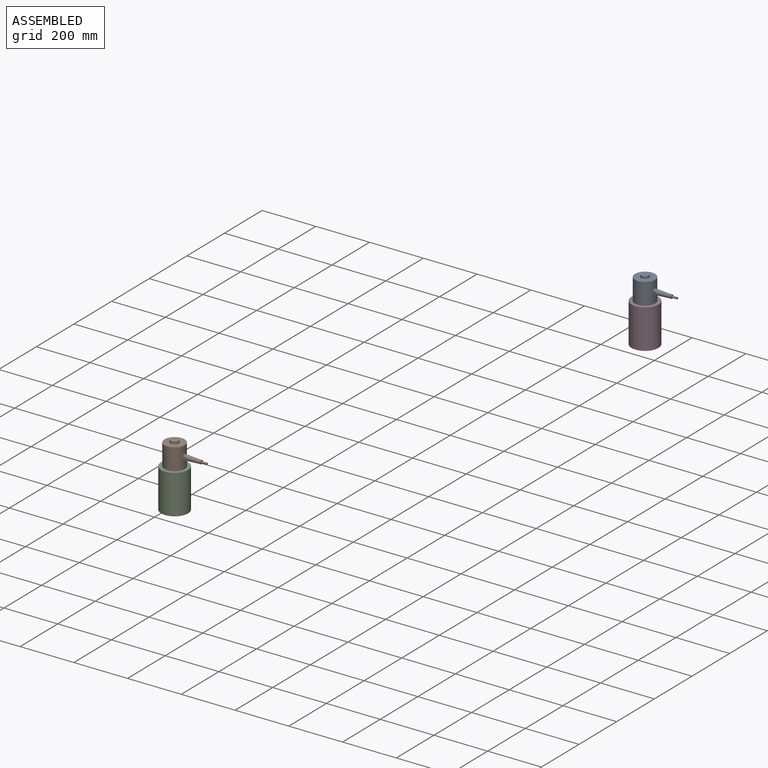
[diagram: assembled view]
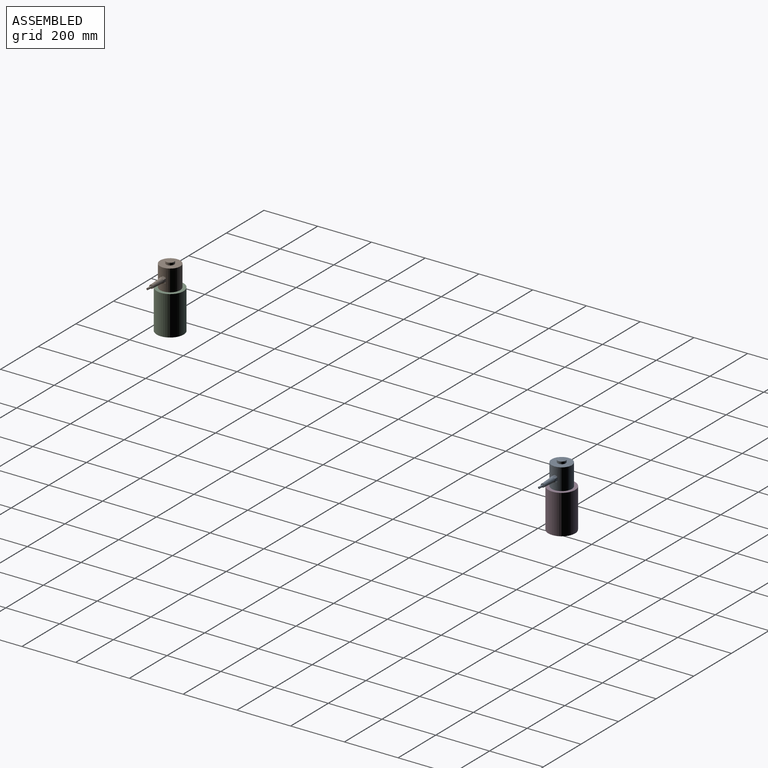
[diagram: assembled view, second angle]
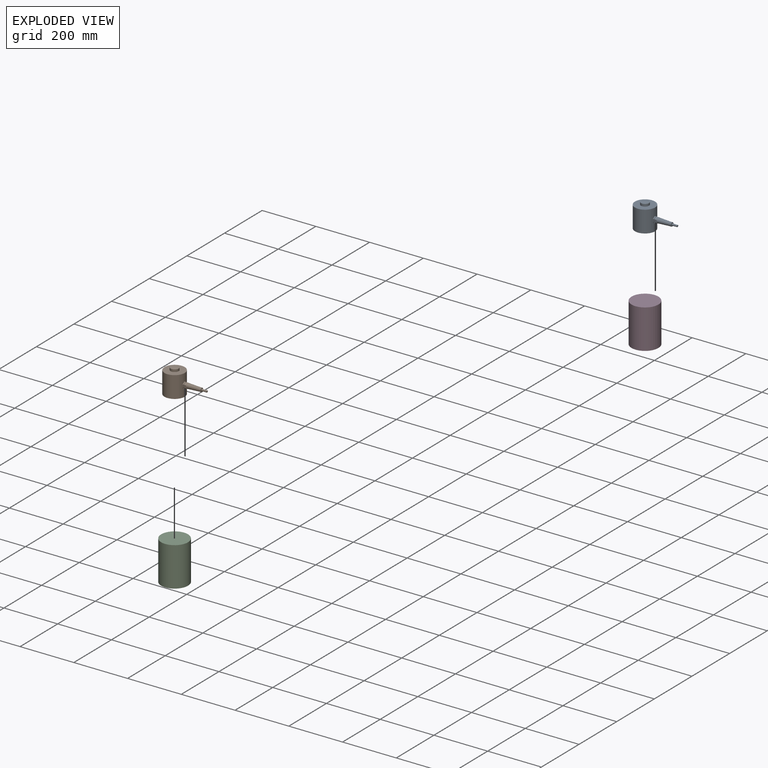
[diagram: exploded view]
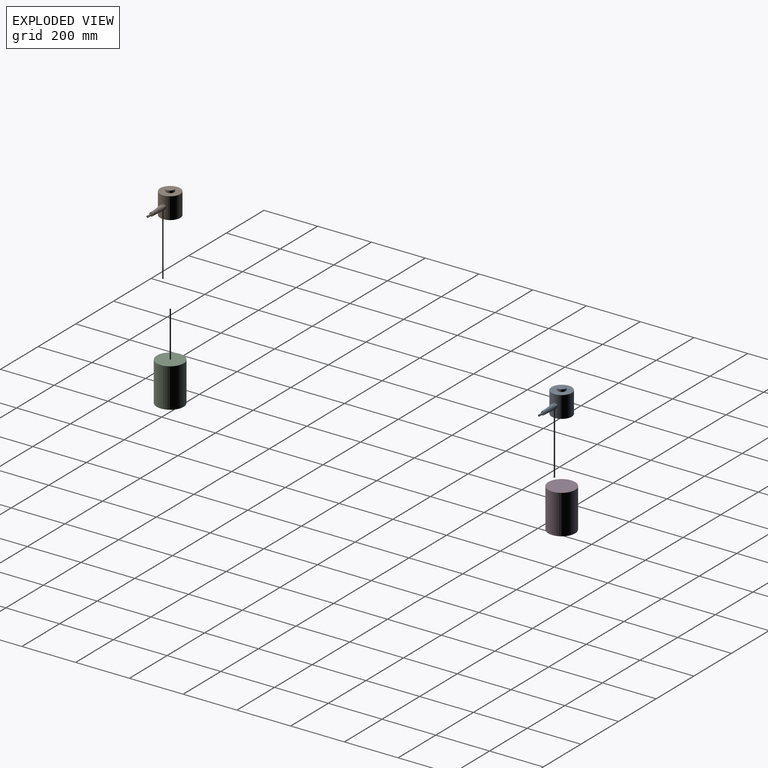
[diagram: exploded view, second angle]
ASSEMBLY  parts=4 mates=2
PART A: 52 faces, bbox 158.8x75x90 mm
  f0: plane 8.92x8.71mm, normal (0,0.5,0.87), area 84.7mm2, adj f4,f8,f11,f24,f30,f35
  f1: sphere r=100mm, area 710.9mm2, adj f51
  f2: plane 10.06x8.92mm, normal (0,1,0), area 84.7mm2, adj f3,f4,f11,f30,f31,f35
  f3: plane 0.7x0.41mm, normal (1,0,0), area 0mm2, adj f2,f4,f31,f36
  f4: cone r=10.74mm half-angle=40.7deg, axis (-1,0,0), area 67.1mm2, adj f0,f2,f3,f5,f6,f8,f10,f15
  f5: plane 0.7x0.41mm, normal (1,0,0), area 0mm2, adj f4,f6,f21,f22
  f6: plane 10.06x8.92mm, normal (0,-1,0), area 84.6mm2, adj f4,f5,f11,f22,f32,f42
  f7: plane 8.71x5.03mm, normal (0,0.5,-0.87), area 40.2mm2, adj f20,f25,f28,f33
  f8: plane 0.81x0.02mm, normal (1,0,0), area 0mm2, adj f0,f4,f15,f24
  f9: cylinder r=8.5mm len=17mm, axis (1,0,0), area 53.4mm2, adj f11,f33
  f10: cone r=9.24mm half-angle=3deg, axis (-1,0,0), area 2158.3mm2, adj f4,f40
  f11: plane 21.5x19mm, normal (-1,0,0), area 85.1mm2, adj f0,f2,f6,f9,f15,f21,f22,f23
  f12: plane 8.71x5.03mm, normal (0,-0.5,0.87), area 40.2mm2, adj f13,f14,f26,f33
  f13: cylinder r=10.75mm len=4mm, axis (-1,0,0), area 3.1mm2, adj f12,f16,f26,f33
  f14: cylinder r=10.75mm len=4.02mm, axis (-1,0,0), area 3.1mm2, adj f12,f17,f26,f33,f34
  f15: plane 8.92x8.71mm, normal (0,-0.5,0.87), area 84.7mm2, adj f4,f8,f11,f24,f32,f42
  f16: plane 8.71x5.03mm, normal (0,0.5,0.87), area 40.2mm2, adj f13,f26,f27,f33
  f17: plane 10.06x4.02mm, normal (0,-1,0), area 40.5mm2, adj f14,f18,f33,f34
  f18: cylinder r=10.75mm len=4.02mm, axis (-1,0,0), area 3.1mm2, adj f17,f19,f25,f33,f34
  f19: plane 8.71x5.03mm, normal (0,-0.5,-0.87), area 40.2mm2, adj f18,f20,f25,f33
  f20: cylinder r=10.75mm len=4mm, axis (-1,0,0), area 3.1mm2, adj f7,f19,f25,f33
  f21: plane 8.92x8.71mm, normal (0,-0.5,-0.87), area 84.6mm2, adj f4,f5,f11,f22,f23,f41
  f22: cylinder r=10.75mm len=7.47mm, axis (-1,0,0), area 5.9mm2, adj f5,f6,f11,f21
  f23: cylinder r=10.75mm len=7.47mm, axis (-1,0,0), area 5.9mm2, adj f11,f21,f36,f41
  f24: cylinder r=10.75mm len=7.47mm, axis (-1,0,0), area 5.9mm2, adj f0,f8,f11,f15
  f25: plane 18.82x5.8mm, normal (1,0,0), area 51.9mm2, adj f7,f18,f19,f20,f28,f34,f44
  f26: plane 18.82x5.8mm, normal (1,0,0), area 51.9mm2, adj f12,f13,f14,f16,f27,f34,f43
  f27: cylinder r=10.75mm len=4.02mm, axis (-1,0,0), area 3.1mm2, adj f16,f26,f29,f33,f34
  f28: cylinder r=10.75mm len=4.02mm, axis (-1,0,0), area 3.1mm2, adj f7,f25,f29,f33,f34
  f29: plane 10.06x4.02mm, normal (0,1,0), area 40.5mm2, adj f27,f28,f33,f34
  f30: cylinder r=10.75mm len=7.47mm, axis (-1,0,0), area 5.9mm2, adj f0,f2,f11,f35
  f31: cylinder r=10.75mm len=7.47mm, axis (-1,0,0), area 5.9mm2, adj f2,f3,f11,f36
  f32: cylinder r=10.75mm len=7.47mm, axis (-1,0,0), area 5.9mm2, adj f6,f11,f15,f42
  f33: plane 21.5x19mm, normal (1,0,0), area 85.1mm2, adj f7,f9,f12,f13,f14,f16,f17,f18
  f34: cylinder r=37.5mm len=80mm, axis (0,0,-1), area 18429.1mm2, adj f14,f17,f18,f25,f26,f27,f28,f29
  f35: plane 0.7x0.41mm, normal (1,0,0), area 0mm2, adj f0,f2,f4,f30
  f36: plane 8.92x8.71mm, normal (0,0.5,-0.87), area 84.7mm2, adj f3,f4,f11,f23,f31,f41
  f37: plane 14x14mm, normal (1,0,0), area 115.5mm2, adj f38,f40
  f38: cylinder r=3.5mm len=20mm, axis (1,0,0), area 439.8mm2, adj f37,f39
  f39: plane 7x7mm, normal (1,0,0), area 38.5mm2, adj f38
  f40: cylinder r=7mm len=14mm, axis (1,0,0), area 375.8mm2, adj f10,f37
  f41: plane 0.81x0.02mm, normal (1,0,0), area 0mm2, adj f4,f21,f23,f36
  f42: plane 0.7x0.41mm, normal (1,0,0), area 0mm2, adj f4,f6,f15,f32
  f43: plane 18.82x1.2mm, normal (0,0,-1), area 15.1mm2, adj f26,f34
  f44: plane 18.82x1.2mm, normal (0,0,1), area 15.1mm2, adj f25,f34
  f45: cone r=10.5mm half-angle=59deg, axis (0,0,-1), area 404.1mm2, adj f46
  f46: cylinder r=10.5mm len=46mm, axis (0,0,-1), area 3034.8mm2, adj f45,f48
  f47: cylinder r=12.5mm len=25mm, axis (0,0,-1), area 1335.2mm2, adj f48,f49
  f48: plane 25x25mm, normal (0,0,-1), area 144.5mm2, adj f46,f47
  f49: plane 75x75mm, normal (0,0,-1), area 3927mm2, adj f34,f47
  f50: plane 75x75mm, normal (0,0,1), area 3711mm2, adj f34,f51
  f51: cylinder r=15mm len=30mm, axis (0,0,-1), area 835.8mm2, adj f1,f50
PART B: same geometry as A
PART C: 3 faces, bbox 100x100x146.1 mm
  f0: plane 100x100mm, normal (0,0,1), area 7854mm2, adj f2
  f1: plane 100x100mm, normal (0,0,-1), area 7854mm2, adj f2
  f2: cylinder r=50mm len=146.13mm, axis (0,0,-1), area 45908.5mm2, adj f0,f1
PART D: 3 faces, bbox 100x100x146.1 mm
  f0: plane 100x100mm, normal (0,0,1), area 7854mm2, adj f2
  f1: plane 100x100mm, normal (0,0,-1), area 7854mm2, adj f2
  f2: cylinder r=50mm len=146.13mm, axis (0,0,-1), area 45908.5mm2, adj f0,f1
PLACE A t=(-3355,1800,216.13)mm
PLACE B t=(-3845,0,216.13)mm
PLACE C at identity fixed
PLACE D at identity fixed
MATE cylindrical A.f34 <-> D.f2  axis (0,0,-1) through (-3355,1800,256.13)mm
MATE fastened B.f34 <-> C.f2  axis (0,0,-1) through (-3845,0,216.13)mm
